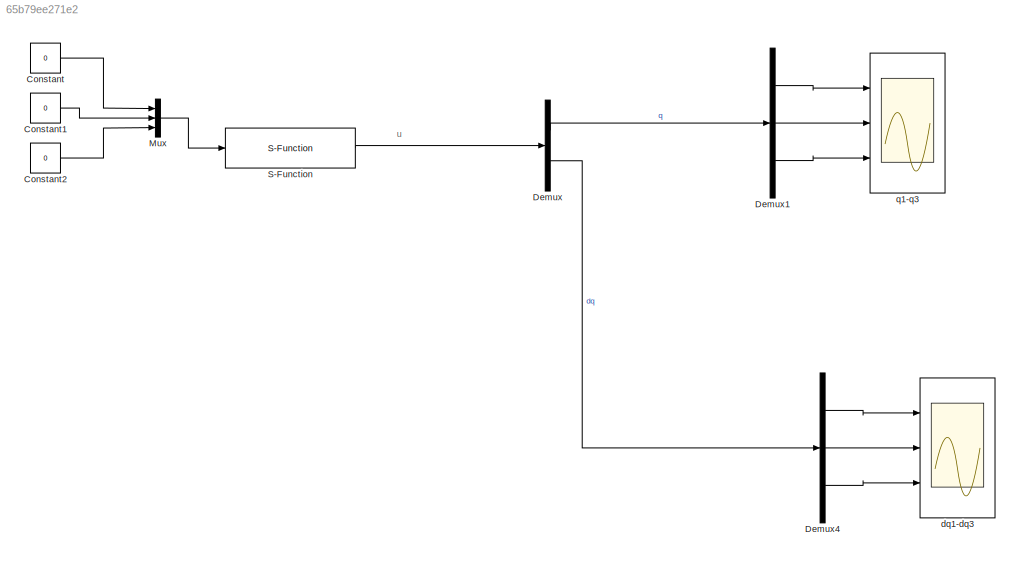
MODEL slx_65b79ee271e2
KIND model
CONFIG AbsTol = auto
CONFIG EnableMultiTasking = off
CONFIG FixedStep = auto
CONFIG MaxStep = auto
CONFIG MinStep = auto
CONFIG RelTol = 1e-3
CONFIG SampleTimeConstraint = Unconstrained
CONFIG SolverName = VariableStepAuto
CONFIG StartTime = 0.0
CONFIG StopTime = 10.0
BLOCK [Constant] Constant
  Value = 0
BLOCK [Constant] Constant1
  Value = 0
BLOCK [Constant] Constant2
  Value = 0
BLOCK [Demux] Demux
  Outputs = 2
  Ports = [1, 2]
BLOCK [Demux] Demux1
  Outputs = myRobot.N
  Ports = [1, 3]
BLOCK [Demux] Demux4
  Outputs = myRobot.N
  Ports = [1, 3]
BLOCK [Mux] Mux
  DisplayOption = bar
  Inputs = 3
  Ports = [3, 1]
BLOCK [S-Function] S-Function
  EnableBusSupport = off
  FunctionName = fwd_dyn_joint_lagrangian
  Parameters = myRobot,he,qi,dqi
  Ports = [1, 1]
  SFcnIsStateOwnerBlock = off
  SFunctionDeploymentMode = off
BLOCK [Scope] dq1-dq3
  Floating = off
  NumInputPorts = 3
  Ports = [3]
  ScopeSpecificationString = Simulink.scopes.TimeScopeBlockCfg('CurrentConfiguration', extmgr.ConfigurationSet(extmgr.Configuration('Core','General UI',true),extmgr.Configuration('Core','Source UI',true),extmgr.Configuration('Sources','WiredSimulink',true,'DataLoggingVariableName','ScopeData1'),extmgr.Configuration('Visuals','Time Domain',true,'SerializedDisplays',{struct('MinYLimReal','-1.00000','MaxYLimReal','1.00000','YLab...<+2755ch>
BLOCK [Scope] q1-q3
  Floating = off
  NumInputPorts = 3
  Ports = [3]
  ScopeSpecificationString = Simulink.scopes.TimeScopeBlockCfg('CurrentConfiguration', extmgr.ConfigurationSet(extmgr.Configuration('Core','General UI',true),extmgr.Configuration('Core','Source UI',true),extmgr.Configuration('Sources','WiredSimulink',true),extmgr.Configuration('Visuals','Time Domain',true,'SerializedDisplays',{struct('MinYLimReal','-1.00000','MaxYLimReal','1.00000','YLabelReal','','MinYLimMag','0.00000','MaxY...<+2746ch>
ANNOTATION (root): u
LINE Constant1:1 -> Mux:2
LINE Constant2:1 -> Mux:3
LINE Constant:1 -> Mux:1
LINE Demux1:1 -> q1-q3:1
LINE Demux1:2 -> q1-q3:2
LINE Demux1:3 -> q1-q3:3
LINE Demux4:1 -> dq1-dq3:1
LINE Demux4:2 -> dq1-dq3:2
LINE Demux4:3 -> dq1-dq3:3
LINE Demux:1 -> Demux1:1
LINE Demux:2 -> Demux4:1
LINE Mux:1 -> S-Function:1
LINE S-Function:1 -> Demux:1
